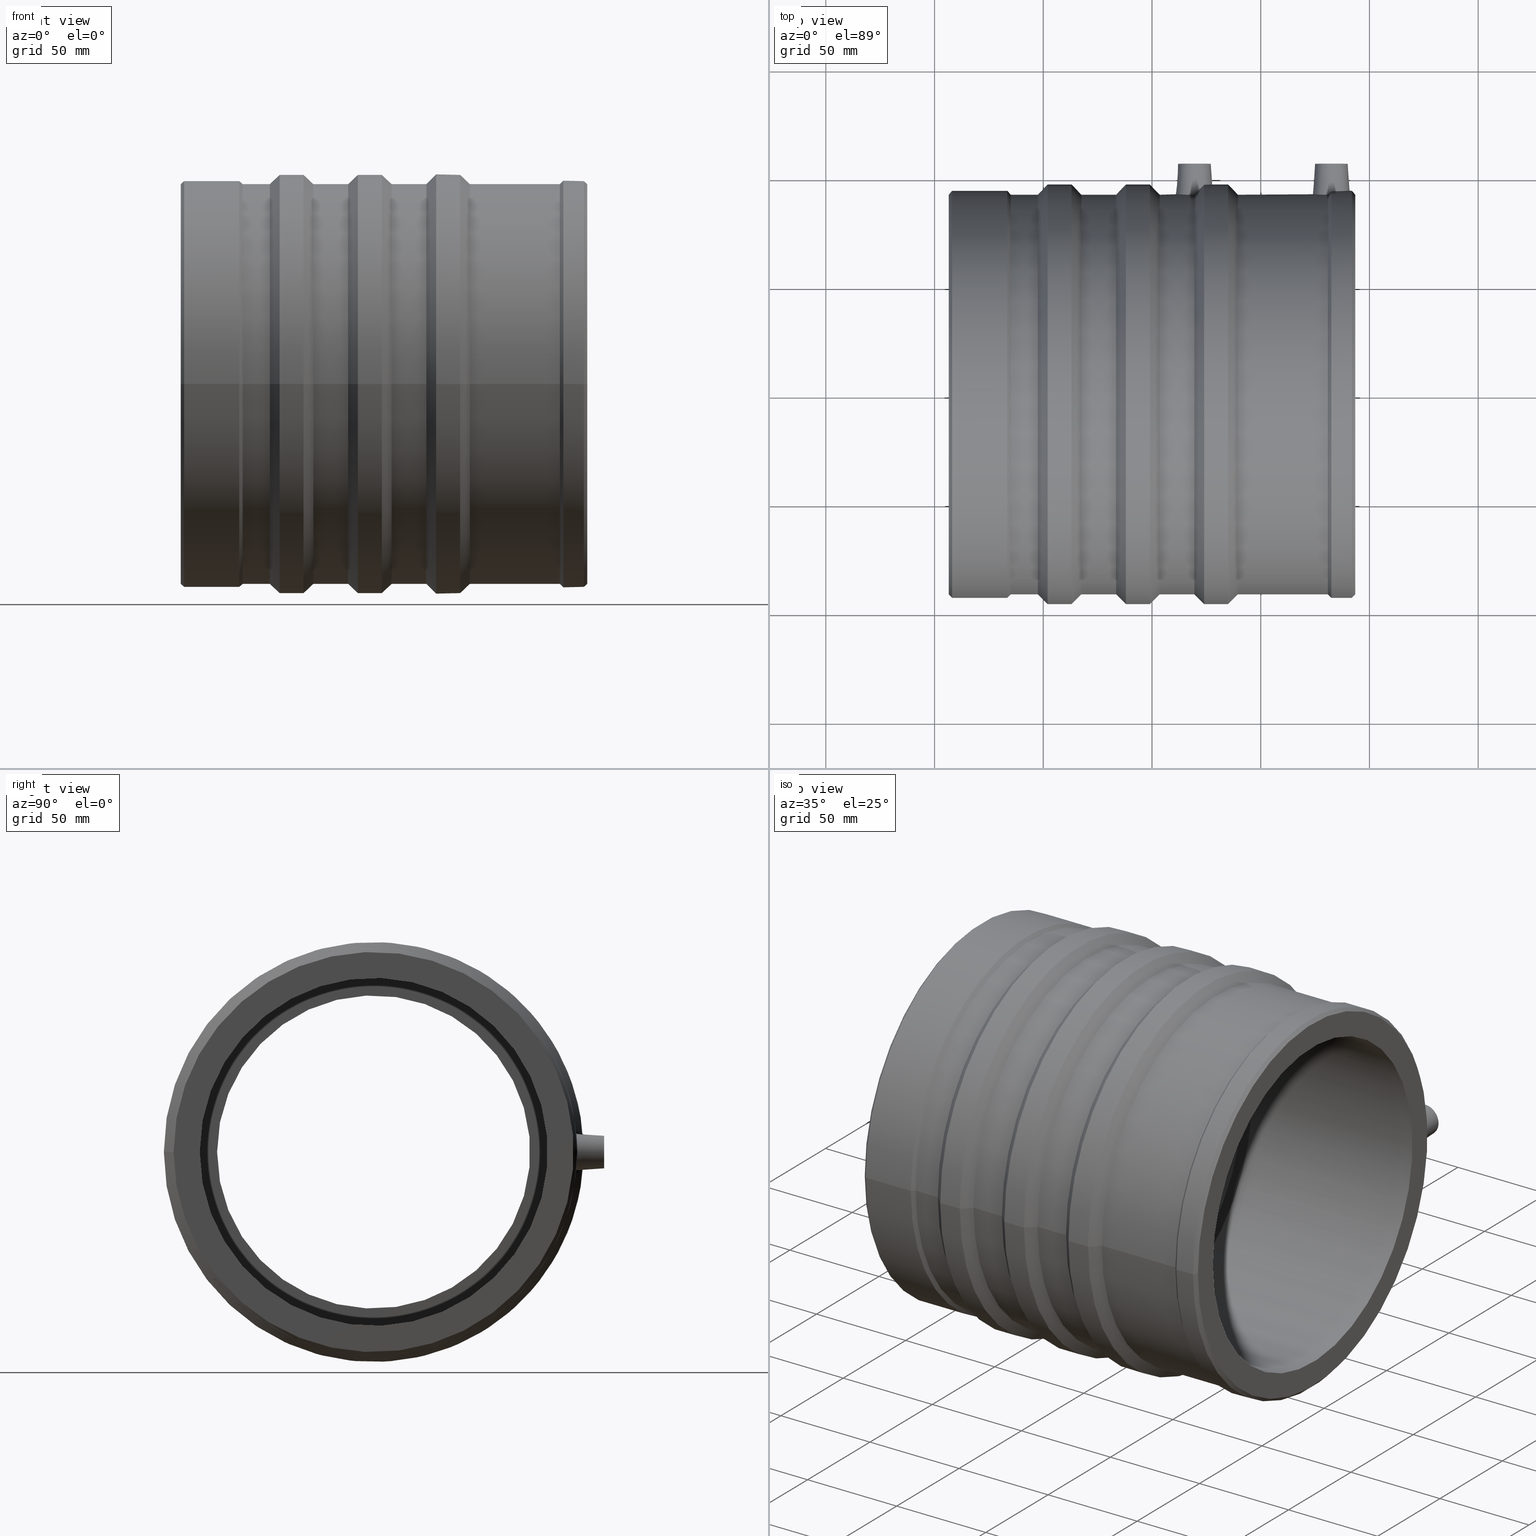
[diagram: canonical four-view strip — front | top / right | iso, engineering-drawing reading convention]
A machine part, canonical four-view strip (front | top / right | iso — engineering-drawing reading convention). The complete STEP part file that produces these views, byte-faithful:
ISO-10303-21;
HEADER;
/* Generated by software containing ST-Developer
 * from STEP Tools, Inc. (www.steptools.com) 
 */

FILE_DESCRIPTION(
/* description */ ('PLASSON PVC TO PE ADAPTOR 160'),
/* implementation_level */ '2;1');

FILE_NAME(
/* name */ 
'C:\\Dropbox\\KIMPROJECTS-Inventor\\99-16-3568-Processing\\ElectroFusi
on Fittings\\4701V4\\4701V4160.ipt.stp',
/* time_stamp */ '2017-11-06T09:09:50+02:00',
/* author */ ('\X2\041A043804400438043B043B\X0\'),
/* organization */ (''),
/* preprocessor_version */ 'ST-DEVELOPER v15.6',
/* originating_system */ 'Autodesk Inventor 2015',
/* authorisation */ '');

FILE_SCHEMA (('AUTOMOTIVE_DESIGN { 1 0 10303 214 3 1 1 }'));
ENDSEC;

DATA;
#10=MECHANICAL_DESIGN_GEOMETRIC_PRESENTATION_REPRESENTATION('',(#13),#948);
#11=SHAPE_REPRESENTATION_RELATIONSHIP('SRR','None',#957,#12);
#12=ADVANCED_BREP_SHAPE_REPRESENTATION($,(#14),#947);
#13=STYLED_ITEM('',(#966),#14);
#14=MANIFOLD_SOLID_BREP('Solid1',#484);
#15=B_SPLINE_CURVE_WITH_KNOTS('',3,(#762,#763,#764,#765,#766,#767,#768),
 .UNSPECIFIED.,.F.,.F.,(4,3,4),(-0.186463948120245,0.,0.0354958039299618),
 .UNSPECIFIED.);
#16=B_SPLINE_CURVE_WITH_KNOTS('',3,(#770,#771,#772,#773,#774,#775,#776,
#777,#778,#779,#780,#781,#782,#783,#784,#785,#786,#787),.UNSPECIFIED.,.F.,
 .F.,(4,2,2,2,2,2,2,2,4),(-2.52674514368012,-2.21078776137079,-1.89483037906145,
-1.57910147545076,-1.26337257184006,-0.947643668229369,-0.631914764618675,
-0.315957382309338,0.),.UNSPECIFIED.);
#17=B_SPLINE_CURVE_WITH_KNOTS('',3,(#789,#790,#791,#792,#793,#794),
 .UNSPECIFIED.,.F.,.F.,(4,2,4),(2.79746124355047,2.83295704748043,3.01942099641415),
 .UNSPECIFIED.);
#18=B_SPLINE_CURVE_WITH_KNOTS('',3,(#795,#796,#797,#798,#799,#800,#801,
#802,#803,#804,#805,#806,#807,#808,#809,#810,#811,#812),.UNSPECIFIED.,.F.,
 .F.,(4,2,2,2,2,2,2,2,4),(0.157292548093549,0.32022700452743,0.64045400905486,
0.96044201823581,1.28043002741676,1.60041803659771,1.92040604577866,2.24063305030609,
2.40356750673997),.UNSPECIFIED.);
#19=B_SPLINE_CURVE_WITH_KNOTS('',3,(#816,#817,#818,#819,#820,#821),
 .UNSPECIFIED.,.F.,.F.,(4,2,4),(5.43166500596152,5.7818485806918,6.06549243439266),
 .UNSPECIFIED.);
#20=B_SPLINE_CURVE_WITH_KNOTS('',3,(#823,#824,#825,#826,#827,#828,#829,
#830,#831,#832,#833,#834,#835,#836),.UNSPECIFIED.,.F.,.F.,(4,2,2,2,2,2,
4),(2.9206396774654,3.08177360296414,3.38982456484115,3.69787552671816,
4.00592648859518,4.31397745047219,4.47511137597093),.UNSPECIFIED.);
#21=B_SPLINE_CURVE_WITH_KNOTS('',3,(#838,#839,#840,#841,#842,#843),
 .UNSPECIFIED.,.F.,.F.,(4,2,4),(3.05545677427075,3.33910062797161,3.68928420270189),
 .UNSPECIFIED.);
#22=B_SPLINE_CURVE_WITH_KNOTS('',3,(#844,#845,#846,#847,#848,#849,#850,
#851,#852,#853,#854,#855,#856,#857,#858,#859,#860,#861),.UNSPECIFIED.,.F.,
 .F.,(4,2,2,2,2,2,2,2,4),(0.,0.32022700452743,0.640454009054861,0.960442018235811,
1.28043002741676,1.60041803659771,1.92040604577866,2.24063305030609,2.56086005483352),
 .UNSPECIFIED.);
#23=CONICAL_SURFACE('',#506,7.5,4.);
#24=CONICAL_SURFACE('',#507,7.5,4.);
#25=CONICAL_SURFACE('',#514,78.,23.4078073493376);
#26=CONICAL_SURFACE('',#523,74.,11.3099324740202);
#27=CONICAL_SURFACE('',#531,92.8025,45.);
#28=CONICAL_SURFACE('',#535,92.8025,45.);
#29=CONICAL_SURFACE('',#536,94.25,44.9999999999999);
#30=CONICAL_SURFACE('',#540,94.25,45.);
#31=CONICAL_SURFACE('',#541,94.25,45.);
#32=CONICAL_SURFACE('',#545,94.25,45.);
#33=CONICAL_SURFACE('',#549,94.25,45.);
#34=CONICAL_SURFACE('',#553,94.25,45.);
#35=CONICAL_SURFACE('',#557,92.8025,44.9999999999998);
#36=CONICAL_SURFACE('',#561,92.8025,45.);
#37=FACE_BOUND('',#134,.T.);
#38=FACE_BOUND('',#136,.T.);
#39=FACE_BOUND('',#138,.T.);
#40=FACE_BOUND('',#140,.T.);
#41=FACE_BOUND('',#142,.T.);
#42=FACE_BOUND('',#144,.T.);
#43=FACE_BOUND('',#146,.T.);
#44=FACE_BOUND('',#148,.T.);
#45=FACE_BOUND('',#150,.T.);
#46=FACE_BOUND('',#152,.T.);
#47=FACE_BOUND('',#154,.T.);
#48=FACE_BOUND('',#156,.T.);
#49=FACE_BOUND('',#158,.T.);
#50=FACE_BOUND('',#160,.T.);
#51=FACE_BOUND('',#162,.T.);
#52=FACE_BOUND('',#164,.T.);
#53=FACE_BOUND('',#166,.T.);
#54=FACE_BOUND('',#168,.T.);
#55=FACE_BOUND('',#170,.T.);
#56=FACE_BOUND('',#172,.T.);
#57=FACE_BOUND('',#174,.T.);
#58=FACE_BOUND('',#176,.T.);
#59=FACE_BOUND('',#179,.T.);
#60=FACE_BOUND('',#181,.T.);
#61=FACE_BOUND('',#184,.T.);
#62=FACE_BOUND('',#186,.T.);
#63=FACE_BOUND('',#188,.T.);
#64=FACE_BOUND('',#190,.T.);
#65=FACE_BOUND('',#192,.T.);
#66=FACE_BOUND('',#194,.T.);
#67=FACE_BOUND('',#196,.T.);
#68=FACE_BOUND('',#198,.T.);
#69=FACE_BOUND('',#200,.T.);
#70=FACE_BOUND('',#202,.T.);
#71=FACE_BOUND('',#204,.T.);
#72=FACE_BOUND('',#206,.T.);
#73=FACE_BOUND('',#208,.T.);
#74=CYLINDRICAL_SURFACE('',#490,2.);
#75=CYLINDRICAL_SURFACE('',#492,5.);
#76=CYLINDRICAL_SURFACE('',#496,2.);
#77=CYLINDRICAL_SURFACE('',#498,5.);
#78=CYLINDRICAL_SURFACE('',#508,92.);
#79=CYLINDRICAL_SURFACE('',#511,92.);
#80=CYLINDRICAL_SURFACE('',#519,80.);
#81=CYLINDRICAL_SURFACE('',#527,80.);
#82=CYLINDRICAL_SURFACE('',#533,93.605);
#83=CYLINDRICAL_SURFACE('',#538,96.5);
#84=CYLINDRICAL_SURFACE('',#543,96.5);
#85=CYLINDRICAL_SURFACE('',#547,92.);
#86=CYLINDRICAL_SURFACE('',#551,96.5);
#87=CYLINDRICAL_SURFACE('',#555,92.);
#88=CYLINDRICAL_SURFACE('',#559,93.605);
#89=CYLINDRICAL_SURFACE('',#565,80.);
#90=FACE_OUTER_BOUND('',#131,.T.);
#91=FACE_OUTER_BOUND('',#132,.T.);
#92=FACE_OUTER_BOUND('',#133,.T.);
#93=FACE_OUTER_BOUND('',#135,.T.);
#94=FACE_OUTER_BOUND('',#137,.T.);
#95=FACE_OUTER_BOUND('',#139,.T.);
#96=FACE_OUTER_BOUND('',#141,.T.);
#97=FACE_OUTER_BOUND('',#143,.T.);
#98=FACE_OUTER_BOUND('',#145,.T.);
#99=FACE_OUTER_BOUND('',#147,.T.);
#100=FACE_OUTER_BOUND('',#149,.T.);
#101=FACE_OUTER_BOUND('',#151,.T.);
#102=FACE_OUTER_BOUND('',#153,.T.);
#103=FACE_OUTER_BOUND('',#155,.T.);
#104=FACE_OUTER_BOUND('',#157,.T.);
#105=FACE_OUTER_BOUND('',#159,.T.);
#106=FACE_OUTER_BOUND('',#161,.T.);
#107=FACE_OUTER_BOUND('',#163,.T.);
#108=FACE_OUTER_BOUND('',#165,.T.);
#109=FACE_OUTER_BOUND('',#167,.T.);
#110=FACE_OUTER_BOUND('',#169,.T.);
#111=FACE_OUTER_BOUND('',#171,.T.);
#112=FACE_OUTER_BOUND('',#173,.T.);
#113=FACE_OUTER_BOUND('',#175,.T.);
#114=FACE_OUTER_BOUND('',#177,.T.);
#115=FACE_OUTER_BOUND('',#178,.T.);
#116=FACE_OUTER_BOUND('',#180,.T.);
#117=FACE_OUTER_BOUND('',#182,.T.);
#118=FACE_OUTER_BOUND('',#183,.T.);
#119=FACE_OUTER_BOUND('',#185,.T.);
#120=FACE_OUTER_BOUND('',#187,.T.);
#121=FACE_OUTER_BOUND('',#189,.T.);
#122=FACE_OUTER_BOUND('',#191,.T.);
#123=FACE_OUTER_BOUND('',#193,.T.);
#124=FACE_OUTER_BOUND('',#195,.T.);
#125=FACE_OUTER_BOUND('',#197,.T.);
#126=FACE_OUTER_BOUND('',#199,.T.);
#127=FACE_OUTER_BOUND('',#201,.T.);
#128=FACE_OUTER_BOUND('',#203,.T.);
#129=FACE_OUTER_BOUND('',#205,.T.);
#130=FACE_OUTER_BOUND('',#207,.T.);
#131=EDGE_LOOP('',(#338));
#132=EDGE_LOOP('',(#339));
#133=EDGE_LOOP('',(#340));
#134=EDGE_LOOP('',(#341));
#135=EDGE_LOOP('',(#342));
#136=EDGE_LOOP('',(#343));
#137=EDGE_LOOP('',(#344));
#138=EDGE_LOOP('',(#345));
#139=EDGE_LOOP('',(#346));
#140=EDGE_LOOP('',(#347));
#141=EDGE_LOOP('',(#348));
#142=EDGE_LOOP('',(#349));
#143=EDGE_LOOP('',(#350));
#144=EDGE_LOOP('',(#351));
#145=EDGE_LOOP('',(#352));
#146=EDGE_LOOP('',(#353));
#147=EDGE_LOOP('',(#354));
#148=EDGE_LOOP('',(#355));
#149=EDGE_LOOP('',(#356,#357,#358,#359));
#150=EDGE_LOOP('',(#360));
#151=EDGE_LOOP('',(#361,#362,#363,#364));
#152=EDGE_LOOP('',(#365));
#153=EDGE_LOOP('',(#366,#367));
#154=EDGE_LOOP('',(#368));
#155=EDGE_LOOP('',(#369,#370));
#156=EDGE_LOOP('',(#371));
#157=EDGE_LOOP('',(#372));
#158=EDGE_LOOP('',(#373));
#159=EDGE_LOOP('',(#374));
#160=EDGE_LOOP('',(#375));
#161=EDGE_LOOP('',(#376));
#162=EDGE_LOOP('',(#377));
#163=EDGE_LOOP('',(#378));
#164=EDGE_LOOP('',(#379));
#165=EDGE_LOOP('',(#380));
#166=EDGE_LOOP('',(#381));
#167=EDGE_LOOP('',(#382));
#168=EDGE_LOOP('',(#383));
#169=EDGE_LOOP('',(#384));
#170=EDGE_LOOP('',(#385));
#171=EDGE_LOOP('',(#386));
#172=EDGE_LOOP('',(#387));
#173=EDGE_LOOP('',(#388));
#174=EDGE_LOOP('',(#389));
#175=EDGE_LOOP('',(#390,#391));
#176=EDGE_LOOP('',(#392));
#177=EDGE_LOOP('',(#393,#394,#395,#396));
#178=EDGE_LOOP('',(#397));
#179=EDGE_LOOP('',(#398));
#180=EDGE_LOOP('',(#399,#400));
#181=EDGE_LOOP('',(#401));
#182=EDGE_LOOP('',(#402,#403,#404,#405));
#183=EDGE_LOOP('',(#406));
#184=EDGE_LOOP('',(#407));
#185=EDGE_LOOP('',(#408));
#186=EDGE_LOOP('',(#409));
#187=EDGE_LOOP('',(#410));
#188=EDGE_LOOP('',(#411));
#189=EDGE_LOOP('',(#412));
#190=EDGE_LOOP('',(#413));
#191=EDGE_LOOP('',(#414));
#192=EDGE_LOOP('',(#415));
#193=EDGE_LOOP('',(#416));
#194=EDGE_LOOP('',(#417));
#195=EDGE_LOOP('',(#418));
#196=EDGE_LOOP('',(#419));
#197=EDGE_LOOP('',(#420));
#198=EDGE_LOOP('',(#421));
#199=EDGE_LOOP('',(#422));
#200=EDGE_LOOP('',(#423));
#201=EDGE_LOOP('',(#424));
#202=EDGE_LOOP('',(#425));
#203=EDGE_LOOP('',(#426));
#204=EDGE_LOOP('',(#427));
#205=EDGE_LOOP('',(#428));
#206=EDGE_LOOP('',(#429));
#207=EDGE_LOOP('',(#430));
#208=EDGE_LOOP('',(#431));
#209=CIRCLE('',#487,2.);
#210=CIRCLE('',#489,2.);
#211=CIRCLE('',#491,2.);
#212=CIRCLE('',#493,5.);
#213=CIRCLE('',#494,5.);
#214=CIRCLE('',#497,2.);
#215=CIRCLE('',#499,5.);
#216=CIRCLE('',#500,5.);
#217=CIRCLE('',#503,7.5);
#218=CIRCLE('',#505,7.5);
#219=CIRCLE('',#509,92.);
#220=CIRCLE('',#510,92.);
#221=CIRCLE('',#512,92.);
#222=CIRCLE('',#513,92.);
#223=CIRCLE('',#515,76.);
#224=CIRCLE('',#516,80.);
#225=CIRCLE('',#518,80.);
#226=CIRCLE('',#520,80.);
#227=CIRCLE('',#522,76.);
#228=CIRCLE('',#524,72.);
#229=CIRCLE('',#526,80.);
#230=CIRCLE('',#528,80.);
#231=CIRCLE('',#530,92.);
#232=CIRCLE('',#532,93.605);
#233=CIRCLE('',#534,93.605);
#234=CIRCLE('',#537,96.5);
#235=CIRCLE('',#539,96.5);
#236=CIRCLE('',#542,96.5);
#237=CIRCLE('',#544,96.5);
#238=CIRCLE('',#546,92.);
#239=CIRCLE('',#548,92.);
#240=CIRCLE('',#550,96.5);
#241=CIRCLE('',#552,96.5);
#242=CIRCLE('',#554,92.);
#243=CIRCLE('',#556,92.);
#244=CIRCLE('',#558,93.605);
#245=CIRCLE('',#560,93.605);
#246=CIRCLE('',#562,92.);
#247=CIRCLE('',#564,80.);
#248=VERTEX_POINT('',#730);
#249=VERTEX_POINT('',#733);
#250=VERTEX_POINT('',#736);
#251=VERTEX_POINT('',#739);
#252=VERTEX_POINT('',#741);
#253=VERTEX_POINT('',#745);
#254=VERTEX_POINT('',#748);
#255=VERTEX_POINT('',#750);
#256=VERTEX_POINT('',#754);
#257=VERTEX_POINT('',#757);
#258=VERTEX_POINT('',#760);
#259=VERTEX_POINT('',#761);
#260=VERTEX_POINT('',#769);
#261=VERTEX_POINT('',#788);
#262=VERTEX_POINT('',#814);
#263=VERTEX_POINT('',#815);
#264=VERTEX_POINT('',#822);
#265=VERTEX_POINT('',#837);
#266=VERTEX_POINT('',#864);
#267=VERTEX_POINT('',#868);
#268=VERTEX_POINT('',#871);
#269=VERTEX_POINT('',#873);
#270=VERTEX_POINT('',#876);
#271=VERTEX_POINT('',#879);
#272=VERTEX_POINT('',#882);
#273=VERTEX_POINT('',#885);
#274=VERTEX_POINT('',#888);
#275=VERTEX_POINT('',#891);
#276=VERTEX_POINT('',#894);
#277=VERTEX_POINT('',#897);
#278=VERTEX_POINT('',#903);
#279=VERTEX_POINT('',#909);
#280=VERTEX_POINT('',#912);
#281=VERTEX_POINT('',#915);
#282=VERTEX_POINT('',#918);
#283=VERTEX_POINT('',#921);
#284=VERTEX_POINT('',#924);
#285=VERTEX_POINT('',#927);
#286=VERTEX_POINT('',#930);
#287=VERTEX_POINT('',#933);
#288=VERTEX_POINT('',#936);
#289=VERTEX_POINT('',#939);
#290=VERTEX_POINT('',#942);
#291=EDGE_CURVE('',#248,#248,#209,.T.);
#292=EDGE_CURVE('',#249,#249,#210,.T.);
#293=EDGE_CURVE('',#250,#250,#211,.T.);
#294=EDGE_CURVE('',#251,#251,#212,.T.);
#295=EDGE_CURVE('',#252,#252,#213,.T.);
#296=EDGE_CURVE('',#253,#253,#214,.T.);
#297=EDGE_CURVE('',#254,#254,#215,.T.);
#298=EDGE_CURVE('',#255,#255,#216,.T.);
#299=EDGE_CURVE('',#256,#256,#217,.T.);
#300=EDGE_CURVE('',#257,#257,#218,.T.);
#301=EDGE_CURVE('',#258,#259,#15,.T.);
#302=EDGE_CURVE('',#260,#258,#16,.T.);
#303=EDGE_CURVE('',#261,#260,#17,.T.);
#304=EDGE_CURVE('',#259,#261,#18,.T.);
#305=EDGE_CURVE('',#262,#263,#19,.T.);
#306=EDGE_CURVE('',#264,#262,#20,.T.);
#307=EDGE_CURVE('',#265,#264,#21,.T.);
#308=EDGE_CURVE('',#263,#265,#22,.T.);
#309=EDGE_CURVE('',#261,#259,#219,.T.);
#310=EDGE_CURVE('',#266,#266,#220,.T.);
#311=EDGE_CURVE('',#265,#263,#221,.T.);
#312=EDGE_CURVE('',#267,#267,#222,.T.);
#313=EDGE_CURVE('',#268,#268,#223,.T.);
#314=EDGE_CURVE('',#269,#269,#224,.T.);
#315=EDGE_CURVE('',#270,#270,#225,.T.);
#316=EDGE_CURVE('',#271,#271,#226,.T.);
#317=EDGE_CURVE('',#272,#272,#227,.T.);
#318=EDGE_CURVE('',#273,#273,#228,.T.);
#319=EDGE_CURVE('',#274,#274,#229,.T.);
#320=EDGE_CURVE('',#275,#275,#230,.T.);
#321=EDGE_CURVE('',#276,#276,#231,.T.);
#322=EDGE_CURVE('',#277,#277,#232,.T.);
#323=EDGE_CURVE('',#260,#258,#233,.T.);
#324=EDGE_CURVE('',#278,#278,#234,.T.);
#325=EDGE_CURVE('',#264,#262,#235,.T.);
#326=EDGE_CURVE('',#279,#279,#236,.T.);
#327=EDGE_CURVE('',#280,#280,#237,.T.);
#328=EDGE_CURVE('',#281,#281,#238,.T.);
#329=EDGE_CURVE('',#282,#282,#239,.T.);
#330=EDGE_CURVE('',#283,#283,#240,.T.);
#331=EDGE_CURVE('',#284,#284,#241,.T.);
#332=EDGE_CURVE('',#285,#285,#242,.T.);
#333=EDGE_CURVE('',#286,#286,#243,.T.);
#334=EDGE_CURVE('',#287,#287,#244,.T.);
#335=EDGE_CURVE('',#288,#288,#245,.T.);
#336=EDGE_CURVE('',#289,#289,#246,.T.);
#337=EDGE_CURVE('',#290,#290,#247,.T.);
#338=ORIENTED_EDGE('',*,*,#291,.F.);
#339=ORIENTED_EDGE('',*,*,#292,.F.);
#340=ORIENTED_EDGE('',*,*,#292,.T.);
#341=ORIENTED_EDGE('',*,*,#293,.T.);
#342=ORIENTED_EDGE('',*,*,#294,.T.);
#343=ORIENTED_EDGE('',*,*,#295,.F.);
#344=ORIENTED_EDGE('',*,*,#294,.F.);
#345=ORIENTED_EDGE('',*,*,#293,.F.);
#346=ORIENTED_EDGE('',*,*,#291,.T.);
#347=ORIENTED_EDGE('',*,*,#296,.T.);
#348=ORIENTED_EDGE('',*,*,#297,.T.);
#349=ORIENTED_EDGE('',*,*,#298,.F.);
#350=ORIENTED_EDGE('',*,*,#297,.F.);
#351=ORIENTED_EDGE('',*,*,#296,.F.);
#352=ORIENTED_EDGE('',*,*,#299,.F.);
#353=ORIENTED_EDGE('',*,*,#295,.T.);
#354=ORIENTED_EDGE('',*,*,#300,.F.);
#355=ORIENTED_EDGE('',*,*,#298,.T.);
#356=ORIENTED_EDGE('',*,*,#301,.F.);
#357=ORIENTED_EDGE('',*,*,#302,.F.);
#358=ORIENTED_EDGE('',*,*,#303,.F.);
#359=ORIENTED_EDGE('',*,*,#304,.F.);
#360=ORIENTED_EDGE('',*,*,#299,.T.);
#361=ORIENTED_EDGE('',*,*,#305,.F.);
#362=ORIENTED_EDGE('',*,*,#306,.F.);
#363=ORIENTED_EDGE('',*,*,#307,.F.);
#364=ORIENTED_EDGE('',*,*,#308,.F.);
#365=ORIENTED_EDGE('',*,*,#300,.T.);
#366=ORIENTED_EDGE('',*,*,#304,.T.);
#367=ORIENTED_EDGE('',*,*,#309,.T.);
#368=ORIENTED_EDGE('',*,*,#310,.F.);
#369=ORIENTED_EDGE('',*,*,#308,.T.);
#370=ORIENTED_EDGE('',*,*,#311,.T.);
#371=ORIENTED_EDGE('',*,*,#312,.F.);
#372=ORIENTED_EDGE('',*,*,#313,.F.);
#373=ORIENTED_EDGE('',*,*,#314,.T.);
#374=ORIENTED_EDGE('',*,*,#315,.F.);
#375=ORIENTED_EDGE('',*,*,#313,.T.);
#376=ORIENTED_EDGE('',*,*,#316,.F.);
#377=ORIENTED_EDGE('',*,*,#315,.T.);
#378=ORIENTED_EDGE('',*,*,#316,.T.);
#379=ORIENTED_EDGE('',*,*,#317,.F.);
#380=ORIENTED_EDGE('',*,*,#318,.F.);
#381=ORIENTED_EDGE('',*,*,#317,.T.);
#382=ORIENTED_EDGE('',*,*,#319,.F.);
#383=ORIENTED_EDGE('',*,*,#318,.T.);
#384=ORIENTED_EDGE('',*,*,#320,.F.);
#385=ORIENTED_EDGE('',*,*,#319,.T.);
#386=ORIENTED_EDGE('',*,*,#321,.F.);
#387=ORIENTED_EDGE('',*,*,#320,.T.);
#388=ORIENTED_EDGE('',*,*,#322,.F.);
#389=ORIENTED_EDGE('',*,*,#321,.T.);
#390=ORIENTED_EDGE('',*,*,#302,.T.);
#391=ORIENTED_EDGE('',*,*,#323,.F.);
#392=ORIENTED_EDGE('',*,*,#322,.T.);
#393=ORIENTED_EDGE('',*,*,#301,.T.);
#394=ORIENTED_EDGE('',*,*,#309,.F.);
#395=ORIENTED_EDGE('',*,*,#303,.T.);
#396=ORIENTED_EDGE('',*,*,#323,.T.);
#397=ORIENTED_EDGE('',*,*,#324,.F.);
#398=ORIENTED_EDGE('',*,*,#310,.T.);
#399=ORIENTED_EDGE('',*,*,#306,.T.);
#400=ORIENTED_EDGE('',*,*,#325,.F.);
#401=ORIENTED_EDGE('',*,*,#324,.T.);
#402=ORIENTED_EDGE('',*,*,#305,.T.);
#403=ORIENTED_EDGE('',*,*,#311,.F.);
#404=ORIENTED_EDGE('',*,*,#307,.T.);
#405=ORIENTED_EDGE('',*,*,#325,.T.);
#406=ORIENTED_EDGE('',*,*,#326,.F.);
#407=ORIENTED_EDGE('',*,*,#312,.T.);
#408=ORIENTED_EDGE('',*,*,#327,.F.);
#409=ORIENTED_EDGE('',*,*,#326,.T.);
#410=ORIENTED_EDGE('',*,*,#328,.F.);
#411=ORIENTED_EDGE('',*,*,#327,.T.);
#412=ORIENTED_EDGE('',*,*,#329,.F.);
#413=ORIENTED_EDGE('',*,*,#328,.T.);
#414=ORIENTED_EDGE('',*,*,#330,.F.);
#415=ORIENTED_EDGE('',*,*,#329,.T.);
#416=ORIENTED_EDGE('',*,*,#331,.F.);
#417=ORIENTED_EDGE('',*,*,#330,.T.);
#418=ORIENTED_EDGE('',*,*,#332,.F.);
#419=ORIENTED_EDGE('',*,*,#331,.T.);
#420=ORIENTED_EDGE('',*,*,#333,.F.);
#421=ORIENTED_EDGE('',*,*,#332,.T.);
#422=ORIENTED_EDGE('',*,*,#334,.F.);
#423=ORIENTED_EDGE('',*,*,#333,.T.);
#424=ORIENTED_EDGE('',*,*,#335,.F.);
#425=ORIENTED_EDGE('',*,*,#334,.T.);
#426=ORIENTED_EDGE('',*,*,#336,.F.);
#427=ORIENTED_EDGE('',*,*,#335,.T.);
#428=ORIENTED_EDGE('',*,*,#336,.T.);
#429=ORIENTED_EDGE('',*,*,#337,.F.);
#430=ORIENTED_EDGE('',*,*,#314,.F.);
#431=ORIENTED_EDGE('',*,*,#337,.T.);
#432=PLANE('',#486);
#433=PLANE('',#488);
#434=PLANE('',#495);
#435=PLANE('',#501);
#436=PLANE('',#502);
#437=PLANE('',#504);
#438=PLANE('',#517);
#439=PLANE('',#521);
#440=PLANE('',#525);
#441=PLANE('',#529);
#442=PLANE('',#563);
#443=ADVANCED_FACE('',(#90),#432,.T.);
#444=ADVANCED_FACE('',(#91),#433,.T.);
#445=ADVANCED_FACE('',(#92,#37),#74,.T.);
#446=ADVANCED_FACE('',(#93,#38),#75,.F.);
#447=ADVANCED_FACE('',(#94,#39),#434,.T.);
#448=ADVANCED_FACE('',(#95,#40),#76,.T.);
#449=ADVANCED_FACE('',(#96,#41),#77,.F.);
#450=ADVANCED_FACE('',(#97,#42),#435,.T.);
#451=ADVANCED_FACE('',(#98,#43),#436,.T.);
#452=ADVANCED_FACE('',(#99,#44),#437,.T.);
#453=ADVANCED_FACE('',(#100,#45),#23,.T.);
#454=ADVANCED_FACE('',(#101,#46),#24,.T.);
#455=ADVANCED_FACE('',(#102,#47),#78,.T.);
#456=ADVANCED_FACE('',(#103,#48),#79,.T.);
#457=ADVANCED_FACE('',(#104,#49),#25,.F.);
#458=ADVANCED_FACE('',(#105,#50),#438,.T.);
#459=ADVANCED_FACE('',(#106,#51),#80,.F.);
#460=ADVANCED_FACE('',(#107,#52),#439,.T.);
#461=ADVANCED_FACE('',(#108,#53),#26,.F.);
#462=ADVANCED_FACE('',(#109,#54),#440,.T.);
#463=ADVANCED_FACE('',(#110,#55),#81,.F.);
#464=ADVANCED_FACE('',(#111,#56),#441,.T.);
#465=ADVANCED_FACE('',(#112,#57),#27,.T.);
#466=ADVANCED_FACE('',(#113,#58),#82,.T.);
#467=ADVANCED_FACE('',(#114),#28,.T.);
#468=ADVANCED_FACE('',(#115,#59),#29,.T.);
#469=ADVANCED_FACE('',(#116,#60),#83,.T.);
#470=ADVANCED_FACE('',(#117),#30,.T.);
#471=ADVANCED_FACE('',(#118,#61),#31,.T.);
#472=ADVANCED_FACE('',(#119,#62),#84,.T.);
#473=ADVANCED_FACE('',(#120,#63),#32,.T.);
#474=ADVANCED_FACE('',(#121,#64),#85,.T.);
#475=ADVANCED_FACE('',(#122,#65),#33,.T.);
#476=ADVANCED_FACE('',(#123,#66),#86,.T.);
#477=ADVANCED_FACE('',(#124,#67),#34,.T.);
#478=ADVANCED_FACE('',(#125,#68),#87,.T.);
#479=ADVANCED_FACE('',(#126,#69),#35,.T.);
#480=ADVANCED_FACE('',(#127,#70),#88,.T.);
#481=ADVANCED_FACE('',(#128,#71),#36,.T.);
#482=ADVANCED_FACE('',(#129,#72),#442,.T.);
#483=ADVANCED_FACE('',(#130,#73),#89,.F.);
#484=CLOSED_SHELL('',(#443,#444,#445,#446,#447,#448,#449,#450,#451,#452,
#453,#454,#455,#456,#457,#458,#459,#460,#461,#462,#463,#464,#465,#466,#467,
#468,#469,#470,#471,#472,#473,#474,#475,#476,#477,#478,#479,#480,#481,#482,
#483));
#485=AXIS2_PLACEMENT_3D('placement',#728,#566,#567);
#486=AXIS2_PLACEMENT_3D('',#729,#568,#569);
#487=AXIS2_PLACEMENT_3D('',#731,#570,#571);
#488=AXIS2_PLACEMENT_3D('',#732,#572,#573);
#489=AXIS2_PLACEMENT_3D('',#734,#574,#575);
#490=AXIS2_PLACEMENT_3D('',#735,#576,#577);
#491=AXIS2_PLACEMENT_3D('',#737,#578,#579);
#492=AXIS2_PLACEMENT_3D('',#738,#580,#581);
#493=AXIS2_PLACEMENT_3D('',#740,#582,#583);
#494=AXIS2_PLACEMENT_3D('',#742,#584,#585);
#495=AXIS2_PLACEMENT_3D('',#743,#586,#587);
#496=AXIS2_PLACEMENT_3D('',#744,#588,#589);
#497=AXIS2_PLACEMENT_3D('',#746,#590,#591);
#498=AXIS2_PLACEMENT_3D('',#747,#592,#593);
#499=AXIS2_PLACEMENT_3D('',#749,#594,#595);
#500=AXIS2_PLACEMENT_3D('',#751,#596,#597);
#501=AXIS2_PLACEMENT_3D('',#752,#598,#599);
#502=AXIS2_PLACEMENT_3D('',#753,#600,#601);
#503=AXIS2_PLACEMENT_3D('',#755,#602,#603);
#504=AXIS2_PLACEMENT_3D('',#756,#604,#605);
#505=AXIS2_PLACEMENT_3D('',#758,#606,#607);
#506=AXIS2_PLACEMENT_3D('',#759,#608,#609);
#507=AXIS2_PLACEMENT_3D('',#813,#610,#611);
#508=AXIS2_PLACEMENT_3D('',#862,#612,#613);
#509=AXIS2_PLACEMENT_3D('',#863,#614,#615);
#510=AXIS2_PLACEMENT_3D('',#865,#616,#617);
#511=AXIS2_PLACEMENT_3D('',#866,#618,#619);
#512=AXIS2_PLACEMENT_3D('',#867,#620,#621);
#513=AXIS2_PLACEMENT_3D('',#869,#622,#623);
#514=AXIS2_PLACEMENT_3D('',#870,#624,#625);
#515=AXIS2_PLACEMENT_3D('',#872,#626,#627);
#516=AXIS2_PLACEMENT_3D('',#874,#628,#629);
#517=AXIS2_PLACEMENT_3D('',#875,#630,#631);
#518=AXIS2_PLACEMENT_3D('',#877,#632,#633);
#519=AXIS2_PLACEMENT_3D('',#878,#634,#635);
#520=AXIS2_PLACEMENT_3D('',#880,#636,#637);
#521=AXIS2_PLACEMENT_3D('',#881,#638,#639);
#522=AXIS2_PLACEMENT_3D('',#883,#640,#641);
#523=AXIS2_PLACEMENT_3D('',#884,#642,#643);
#524=AXIS2_PLACEMENT_3D('',#886,#644,#645);
#525=AXIS2_PLACEMENT_3D('',#887,#646,#647);
#526=AXIS2_PLACEMENT_3D('',#889,#648,#649);
#527=AXIS2_PLACEMENT_3D('',#890,#650,#651);
#528=AXIS2_PLACEMENT_3D('',#892,#652,#653);
#529=AXIS2_PLACEMENT_3D('',#893,#654,#655);
#530=AXIS2_PLACEMENT_3D('',#895,#656,#657);
#531=AXIS2_PLACEMENT_3D('',#896,#658,#659);
#532=AXIS2_PLACEMENT_3D('',#898,#660,#661);
#533=AXIS2_PLACEMENT_3D('',#899,#662,#663);
#534=AXIS2_PLACEMENT_3D('',#900,#664,#665);
#535=AXIS2_PLACEMENT_3D('',#901,#666,#667);
#536=AXIS2_PLACEMENT_3D('',#902,#668,#669);
#537=AXIS2_PLACEMENT_3D('',#904,#670,#671);
#538=AXIS2_PLACEMENT_3D('',#905,#672,#673);
#539=AXIS2_PLACEMENT_3D('',#906,#674,#675);
#540=AXIS2_PLACEMENT_3D('',#907,#676,#677);
#541=AXIS2_PLACEMENT_3D('',#908,#678,#679);
#542=AXIS2_PLACEMENT_3D('',#910,#680,#681);
#543=AXIS2_PLACEMENT_3D('',#911,#682,#683);
#544=AXIS2_PLACEMENT_3D('',#913,#684,#685);
#545=AXIS2_PLACEMENT_3D('',#914,#686,#687);
#546=AXIS2_PLACEMENT_3D('',#916,#688,#689);
#547=AXIS2_PLACEMENT_3D('',#917,#690,#691);
#548=AXIS2_PLACEMENT_3D('',#919,#692,#693);
#549=AXIS2_PLACEMENT_3D('',#920,#694,#695);
#550=AXIS2_PLACEMENT_3D('',#922,#696,#697);
#551=AXIS2_PLACEMENT_3D('',#923,#698,#699);
#552=AXIS2_PLACEMENT_3D('',#925,#700,#701);
#553=AXIS2_PLACEMENT_3D('',#926,#702,#703);
#554=AXIS2_PLACEMENT_3D('',#928,#704,#705);
#555=AXIS2_PLACEMENT_3D('',#929,#706,#707);
#556=AXIS2_PLACEMENT_3D('',#931,#708,#709);
#557=AXIS2_PLACEMENT_3D('',#932,#710,#711);
#558=AXIS2_PLACEMENT_3D('',#934,#712,#713);
#559=AXIS2_PLACEMENT_3D('',#935,#714,#715);
#560=AXIS2_PLACEMENT_3D('',#937,#716,#717);
#561=AXIS2_PLACEMENT_3D('',#938,#718,#719);
#562=AXIS2_PLACEMENT_3D('',#940,#720,#721);
#563=AXIS2_PLACEMENT_3D('',#941,#722,#723);
#564=AXIS2_PLACEMENT_3D('',#943,#724,#725);
#565=AXIS2_PLACEMENT_3D('',#944,#726,#727);
#566=DIRECTION('axis',(0.,0.,1.));
#567=DIRECTION('refdir',(1.,0.,0.));
#568=DIRECTION('center_axis',(0.,1.,0.));
#569=DIRECTION('ref_axis',(0.,0.,1.));
#570=DIRECTION('center_axis',(0.,-1.,0.));
#571=DIRECTION('ref_axis',(-1.,0.,0.));
#572=DIRECTION('center_axis',(0.,1.,0.));
#573=DIRECTION('ref_axis',(0.,0.,1.));
#574=DIRECTION('center_axis',(0.,-1.,0.));
#575=DIRECTION('ref_axis',(-1.,0.,0.));
#576=DIRECTION('center_axis',(0.,-1.,0.));
#577=DIRECTION('ref_axis',(-1.,0.,0.));
#578=DIRECTION('center_axis',(0.,1.,0.));
#579=DIRECTION('ref_axis',(-1.,0.,0.));
#580=DIRECTION('center_axis',(0.,-1.,0.));
#581=DIRECTION('ref_axis',(-1.,0.,0.));
#582=DIRECTION('center_axis',(0.,-1.,0.));
#583=DIRECTION('ref_axis',(-1.,0.,0.));
#584=DIRECTION('center_axis',(0.,-1.,0.));
#585=DIRECTION('ref_axis',(-1.,0.,0.));
#586=DIRECTION('center_axis',(0.,1.,0.));
#587=DIRECTION('ref_axis',(0.,0.,1.));
#588=DIRECTION('center_axis',(0.,-1.,0.));
#589=DIRECTION('ref_axis',(-1.,0.,0.));
#590=DIRECTION('center_axis',(0.,1.,0.));
#591=DIRECTION('ref_axis',(-1.,0.,0.));
#592=DIRECTION('center_axis',(0.,-1.,0.));
#593=DIRECTION('ref_axis',(-1.,0.,0.));
#594=DIRECTION('center_axis',(0.,-1.,0.));
#595=DIRECTION('ref_axis',(-1.,0.,0.));
#596=DIRECTION('center_axis',(0.,-1.,0.));
#597=DIRECTION('ref_axis',(-1.,0.,0.));
#598=DIRECTION('center_axis',(0.,1.,0.));
#599=DIRECTION('ref_axis',(0.,0.,1.));
#600=DIRECTION('center_axis',(0.,1.,0.));
#601=DIRECTION('ref_axis',(0.,0.,1.));
#602=DIRECTION('center_axis',(0.,-1.,0.));
#603=DIRECTION('ref_axis',(1.,0.,0.));
#604=DIRECTION('center_axis',(0.,1.,0.));
#605=DIRECTION('ref_axis',(0.,0.,1.));
#606=DIRECTION('center_axis',(0.,-1.,0.));
#607=DIRECTION('ref_axis',(1.,0.,0.));
#608=DIRECTION('center_axis',(0.,-1.,0.));
#609=DIRECTION('ref_axis',(1.,0.,0.));
#610=DIRECTION('center_axis',(0.,-1.,0.));
#611=DIRECTION('ref_axis',(1.,0.,0.));
#612=DIRECTION('center_axis',(-1.,-1.83697019872103E-16,0.));
#613=DIRECTION('ref_axis',(1.80411241501588E-16,-1.,0.));
#614=DIRECTION('center_axis',(-1.,-1.83697019872103E-16,0.));
#615=DIRECTION('ref_axis',(0.,0.,1.));
#616=DIRECTION('center_axis',(-1.,-1.83697019872103E-16,0.));
#617=DIRECTION('ref_axis',(0.,0.,1.));
#618=DIRECTION('center_axis',(-1.,-1.83697019872103E-16,0.));
#619=DIRECTION('ref_axis',(1.80411241501588E-16,-1.,0.));
#620=DIRECTION('center_axis',(-1.,-1.83697019872103E-16,0.));
#621=DIRECTION('ref_axis',(0.,0.,1.));
#622=DIRECTION('center_axis',(-1.,-1.83697019872103E-16,0.));
#623=DIRECTION('ref_axis',(0.,0.,1.));
#624=DIRECTION('center_axis',(-1.,-1.83697019872103E-16,0.));
#625=DIRECTION('ref_axis',(1.80411241501588E-16,-1.,0.));
#626=DIRECTION('center_axis',(-1.,-1.83697019872103E-16,0.));
#627=DIRECTION('ref_axis',(0.,0.,1.));
#628=DIRECTION('center_axis',(-1.,-1.83697019872103E-16,0.));
#629=DIRECTION('ref_axis',(0.,0.,1.));
#630=DIRECTION('center_axis',(1.,1.83697019872103E-16,0.));
#631=DIRECTION('ref_axis',(0.,0.,-1.));
#632=DIRECTION('center_axis',(-1.,-1.83697019872103E-16,0.));
#633=DIRECTION('ref_axis',(0.,0.,1.));
#634=DIRECTION('center_axis',(-1.,-1.83697019872103E-16,0.));
#635=DIRECTION('ref_axis',(1.80411241501588E-16,-1.,0.));
#636=DIRECTION('center_axis',(-1.,-1.83697019872103E-16,0.));
#637=DIRECTION('ref_axis',(0.,0.,1.));
#638=DIRECTION('center_axis',(-1.,-1.83697019872103E-16,0.));
#639=DIRECTION('ref_axis',(0.,0.,1.));
#640=DIRECTION('center_axis',(-1.,-1.83697019872103E-16,0.));
#641=DIRECTION('ref_axis',(0.,0.,1.));
#642=DIRECTION('center_axis',(-1.,-1.83697019872103E-16,0.));
#643=DIRECTION('ref_axis',(1.80411241501588E-16,-1.,0.));
#644=DIRECTION('center_axis',(-1.,-1.83697019872103E-16,0.));
#645=DIRECTION('ref_axis',(0.,0.,1.));
#646=DIRECTION('center_axis',(1.,1.83697019872103E-16,0.));
#647=DIRECTION('ref_axis',(0.,0.,-1.));
#648=DIRECTION('center_axis',(-1.,-1.83697019872103E-16,0.));
#649=DIRECTION('ref_axis',(0.,0.,1.));
#650=DIRECTION('center_axis',(-1.,-1.83697019872103E-16,0.));
#651=DIRECTION('ref_axis',(1.80411241501588E-16,-1.,0.));
#652=DIRECTION('center_axis',(-1.,-1.83697019872103E-16,0.));
#653=DIRECTION('ref_axis',(0.,0.,1.));
#654=DIRECTION('center_axis',(1.,1.83697019872103E-16,0.));
#655=DIRECTION('ref_axis',(0.,0.,-1.));
#656=DIRECTION('center_axis',(-1.,-1.83697019872103E-16,0.));
#657=DIRECTION('ref_axis',(0.,0.,1.));
#658=DIRECTION('center_axis',(-1.,-1.83697019872103E-16,0.));
#659=DIRECTION('ref_axis',(1.80411241501588E-16,-1.,0.));
#660=DIRECTION('center_axis',(-1.,-1.83697019872103E-16,0.));
#661=DIRECTION('ref_axis',(0.,0.,1.));
#662=DIRECTION('center_axis',(-1.,-1.83697019872103E-16,0.));
#663=DIRECTION('ref_axis',(1.80411241501588E-16,-1.,0.));
#664=DIRECTION('center_axis',(-1.,-1.83697019872103E-16,0.));
#665=DIRECTION('ref_axis',(0.,0.,1.));
#666=DIRECTION('center_axis',(1.,1.83697019872103E-16,0.));
#667=DIRECTION('ref_axis',(1.80411241501588E-16,-1.,0.));
#668=DIRECTION('center_axis',(-1.,-1.83697019872103E-16,0.));
#669=DIRECTION('ref_axis',(1.80411241501588E-16,-1.,0.));
#670=DIRECTION('center_axis',(-1.,-1.83697019872103E-16,0.));
#671=DIRECTION('ref_axis',(0.,0.,1.));
#672=DIRECTION('center_axis',(-1.,-1.83697019872103E-16,0.));
#673=DIRECTION('ref_axis',(1.80411241501588E-16,-1.,0.));
#674=DIRECTION('center_axis',(-1.,-1.83697019872103E-16,0.));
#675=DIRECTION('ref_axis',(0.,0.,1.));
#676=DIRECTION('center_axis',(1.,1.83697019872103E-16,0.));
#677=DIRECTION('ref_axis',(1.80411241501588E-16,-1.,0.));
#678=DIRECTION('center_axis',(-1.,-1.83697019872103E-16,0.));
#679=DIRECTION('ref_axis',(1.80411241501588E-16,-1.,0.));
#680=DIRECTION('center_axis',(-1.,-1.83697019872103E-16,0.));
#681=DIRECTION('ref_axis',(0.,0.,1.));
#682=DIRECTION('center_axis',(-1.,-1.83697019872103E-16,0.));
#683=DIRECTION('ref_axis',(1.80411241501588E-16,-1.,0.));
#684=DIRECTION('center_axis',(-1.,-1.83697019872103E-16,0.));
#685=DIRECTION('ref_axis',(0.,0.,1.));
#686=DIRECTION('center_axis',(1.,1.83697019872103E-16,0.));
#687=DIRECTION('ref_axis',(1.80411241501588E-16,-1.,0.));
#688=DIRECTION('center_axis',(-1.,-1.83697019872103E-16,0.));
#689=DIRECTION('ref_axis',(0.,0.,1.));
#690=DIRECTION('center_axis',(-1.,-1.83697019872103E-16,0.));
#691=DIRECTION('ref_axis',(1.80411241501588E-16,-1.,0.));
#692=DIRECTION('center_axis',(-1.,-1.83697019872103E-16,0.));
#693=DIRECTION('ref_axis',(0.,0.,1.));
#694=DIRECTION('center_axis',(-1.,-1.83697019872103E-16,0.));
#695=DIRECTION('ref_axis',(1.80411241501588E-16,-1.,0.));
#696=DIRECTION('center_axis',(-1.,-1.83697019872103E-16,0.));
#697=DIRECTION('ref_axis',(0.,0.,1.));
#698=DIRECTION('center_axis',(-1.,-1.83697019872103E-16,0.));
#699=DIRECTION('ref_axis',(1.80411241501588E-16,-1.,0.));
#700=DIRECTION('center_axis',(-1.,-1.83697019872103E-16,0.));
#701=DIRECTION('ref_axis',(0.,0.,1.));
#702=DIRECTION('center_axis',(1.,1.83697019872103E-16,0.));
#703=DIRECTION('ref_axis',(1.80411241501588E-16,-1.,0.));
#704=DIRECTION('center_axis',(-1.,-1.83697019872103E-16,0.));
#705=DIRECTION('ref_axis',(0.,0.,1.));
#706=DIRECTION('center_axis',(-1.,-1.83697019872103E-16,0.));
#707=DIRECTION('ref_axis',(1.80411241501588E-16,-1.,0.));
#708=DIRECTION('center_axis',(-1.,-1.83697019872103E-16,0.));
#709=DIRECTION('ref_axis',(0.,0.,1.));
#710=DIRECTION('center_axis',(-1.,-1.83697019872103E-16,0.));
#711=DIRECTION('ref_axis',(1.80411241501588E-16,-1.,0.));
#712=DIRECTION('center_axis',(-1.,-1.83697019872103E-16,0.));
#713=DIRECTION('ref_axis',(0.,0.,1.));
#714=DIRECTION('center_axis',(-1.,-1.83697019872103E-16,0.));
#715=DIRECTION('ref_axis',(1.80411241501588E-16,-1.,0.));
#716=DIRECTION('center_axis',(-1.,-1.83697019872103E-16,0.));
#717=DIRECTION('ref_axis',(0.,0.,1.));
#718=DIRECTION('center_axis',(1.,1.83697019872103E-16,0.));
#719=DIRECTION('ref_axis',(1.80411241501588E-16,-1.,0.));
#720=DIRECTION('center_axis',(-1.,-1.83697019872103E-16,0.));
#721=DIRECTION('ref_axis',(0.,0.,1.));
#722=DIRECTION('center_axis',(-1.,-1.83697019872103E-16,0.));
#723=DIRECTION('ref_axis',(0.,0.,1.));
#724=DIRECTION('center_axis',(-1.,-1.83697019872103E-16,0.));
#725=DIRECTION('ref_axis',(0.,0.,1.));
#726=DIRECTION('center_axis',(-1.,-1.83697019872103E-16,0.));
#727=DIRECTION('ref_axis',(1.80411241501588E-16,-1.,0.));
#728=CARTESIAN_POINT('',(0.,0.,0.));
#729=CARTESIAN_POINT('Origin',(19.5,102.,0.));
#730=CARTESIAN_POINT('',(21.5,102.,-2.44929359829471E-16));
#731=CARTESIAN_POINT('Origin',(19.5,102.,0.));
#732=CARTESIAN_POINT('Origin',(82.5050000000001,102.,-2.89120579329468E-17));
#733=CARTESIAN_POINT('',(84.5050000000001,102.,-2.44929359829471E-16));
#734=CARTESIAN_POINT('Origin',(82.5050000000001,102.,0.));
#735=CARTESIAN_POINT('Origin',(82.5050000000001,106.,0.));
#736=CARTESIAN_POINT('',(84.5050000000001,92.,-2.44929359829471E-16));
#737=CARTESIAN_POINT('Origin',(82.5050000000001,92.,0.));
#738=CARTESIAN_POINT('Origin',(82.5050000000001,106.,0.));
#739=CARTESIAN_POINT('',(87.5050000000001,92.,-6.12323399573677E-16));
#740=CARTESIAN_POINT('Origin',(82.5050000000001,92.,0.));
#741=CARTESIAN_POINT('',(87.5050000000001,106.,-6.12323399573677E-16));
#742=CARTESIAN_POINT('Origin',(82.5050000000001,106.,0.));
#743=CARTESIAN_POINT('Origin',(82.5050000000001,92.,-9.25185853854297E-17));
#744=CARTESIAN_POINT('Origin',(19.5,106.,0.));
#745=CARTESIAN_POINT('',(21.5,92.,-2.44929359829471E-16));
#746=CARTESIAN_POINT('Origin',(19.5,92.,0.));
#747=CARTESIAN_POINT('Origin',(19.5,106.,0.));
#748=CARTESIAN_POINT('',(24.5,92.,-6.12323399573677E-16));
#749=CARTESIAN_POINT('Origin',(19.5,92.,0.));
#750=CARTESIAN_POINT('',(24.5,106.,-6.12323399573677E-16));
#751=CARTESIAN_POINT('Origin',(19.5,106.,0.));
#752=CARTESIAN_POINT('Origin',(19.5,92.,-9.25185853854297E-17));
#753=CARTESIAN_POINT('Origin',(82.5050000000001,106.,-1.2335811384724E-16));
#754=CARTESIAN_POINT('',(75.0050000000001,106.,9.18485099360515E-16));
#755=CARTESIAN_POINT('Origin',(82.5050000000001,106.,0.));
#756=CARTESIAN_POINT('Origin',(19.5,106.,-1.2335811384724E-16));
#757=CARTESIAN_POINT('',(12.,106.,9.18485099360515E-16));
#758=CARTESIAN_POINT('Origin',(19.5,106.,0.));
#759=CARTESIAN_POINT('Origin',(82.5050000000001,106.,0.));
#760=CARTESIAN_POINT('',(82.505,93.2279558802308,8.39310832729732));
#761=CARTESIAN_POINT('',(80.9000000001944,91.6200400206948,8.35274006648221));
#762=CARTESIAN_POINT('Ctrl Pts',(82.505,93.2279558802308,8.39310832729732));
#763=CARTESIAN_POINT('Ctrl Pts',(82.0462133750948,92.7643954949406,8.42552362718397));
#764=CARTESIAN_POINT('Ctrl Pts',(81.5922791374297,92.3091052135882,8.41948373464143));
#765=CARTESIAN_POINT('Ctrl Pts',(81.1527793968875,91.8714222893082,8.37956281618621));
#766=CARTESIAN_POINT('Ctrl Pts',(81.0691149846791,91.7881037313759,8.37196335737138));
#767=CARTESIAN_POINT('Ctrl Pts',(80.9848250384747,91.7042777161996,8.36304117721045));
#768=CARTESIAN_POINT('Ctrl Pts',(80.9000000001303,91.6200400207643,8.35274006644201));
#769=CARTESIAN_POINT('',(82.505,93.2279558802308,-8.39310832729732));
#770=CARTESIAN_POINT('Ctrl Pts',(82.5050000000001,93.2279558802308,-8.39310832729732));
#771=CARTESIAN_POINT('Ctrl Pts',(83.5581912743645,93.2279558802308,-8.39310832729732));
#772=CARTESIAN_POINT('Ctrl Pts',(84.6808009119828,93.2477675867356,-8.18142097998716));
#773=CARTESIAN_POINT('Ctrl Pts',(86.7440429150632,93.3191582322882,-7.32232987065968));
#774=CARTESIAN_POINT('Ctrl Pts',(87.6847327372753,93.3696911534269,-6.67497749586913));
#775=CARTESIAN_POINT('Ctrl Pts',(89.1683608001435,93.4643337429721,-5.18382688331925));
#776=CARTESIAN_POINT('Ctrl Pts',(89.8106747617122,93.5146011003482,-4.24068598705072));
#777=CARTESIAN_POINT('Ctrl Pts',(90.6623724135029,93.5854335900467,-2.1750071830656));
#778=CARTESIAN_POINT('Ctrl Pts',(90.8717428340399,93.6050000000001,-1.05242967870231));
#779=CARTESIAN_POINT('Ctrl Pts',(90.8717428340399,93.6050000000001,1.05242967870231));
#780=CARTESIAN_POINT('Ctrl Pts',(90.6623724135029,93.5854335900467,2.17500718306559));
#781=CARTESIAN_POINT('Ctrl Pts',(89.8106747617122,93.5146011003482,4.24068598705071));
#782=CARTESIAN_POINT('Ctrl Pts',(89.1683608001435,93.4643337429721,5.18382688331925));
#783=CARTESIAN_POINT('Ctrl Pts',(87.6847327372753,93.3696911534269,6.67497749586913));
#784=CARTESIAN_POINT('Ctrl Pts',(86.7440429150633,93.3191582322882,7.32232987065968));
#785=CARTESIAN_POINT('Ctrl Pts',(84.6808009119828,93.2477675867356,8.18142097998716));
#786=CARTESIAN_POINT('Ctrl Pts',(83.5581912743645,93.2279558802308,8.39310832729732));
#787=CARTESIAN_POINT('Ctrl Pts',(82.5050000000001,93.2279558802308,8.39310832729732));
#788=CARTESIAN_POINT('',(80.9000000001944,91.6200400206948,-8.35274006648221));
#789=CARTESIAN_POINT('Ctrl Pts',(80.9000000001304,91.6200400207643,-8.35274006644201));
#790=CARTESIAN_POINT('Ctrl Pts',(80.9848250384747,91.7042777161996,-8.36304117721045));
#791=CARTESIAN_POINT('Ctrl Pts',(81.0691149846791,91.7881037313759,-8.37196335737138));
#792=CARTESIAN_POINT('Ctrl Pts',(81.5922791393471,92.3091052154976,-8.41948373481559));
#793=CARTESIAN_POINT('Ctrl Pts',(82.0462133757203,92.7643954955726,-8.42552362713977));
#794=CARTESIAN_POINT('Ctrl Pts',(82.505,93.2279558802308,-8.39310832729732));
#795=CARTESIAN_POINT('Ctrl Pts',(80.9000000001968,91.6200400206314,8.35274006646424));
#796=CARTESIAN_POINT('Ctrl Pts',(80.3416862049481,91.6298844692996,8.24475768298421));
#797=CARTESIAN_POINT('Ctrl Pts',(79.7863021630924,91.644934531185,8.07808221760853));
#798=CARTESIAN_POINT('Ctrl Pts',(78.2088638379404,91.7012399596015,7.42115556044585));
#799=CARTESIAN_POINT('Ctrl Pts',(77.2555725147718,91.7540652510374,6.76501261314006));
#800=CARTESIAN_POINT('Ctrl Pts',(75.7521299576632,91.852989012324,5.25370716272416));
#801=CARTESIAN_POINT('Ctrl Pts',(75.1012531847958,91.9055250173577,4.29785371559446));
#802=CARTESIAN_POINT('Ctrl Pts',(74.2381930489039,91.9795519810588,2.20433493796449));
#803=CARTESIAN_POINT('Ctrl Pts',(74.0260246327909,92.0000000000001,1.06662669726983));
#804=CARTESIAN_POINT('Ctrl Pts',(74.0260246327909,92.0000000000001,-1.06662669726983));
#805=CARTESIAN_POINT('Ctrl Pts',(74.2381930489039,91.9795519810588,-2.20433493796449));
#806=CARTESIAN_POINT('Ctrl Pts',(75.1012531847958,91.9055250173577,-4.29785371559446));
#807=CARTESIAN_POINT('Ctrl Pts',(75.7521299576632,91.852989012324,-5.25370716272415));
#808=CARTESIAN_POINT('Ctrl Pts',(77.2555725147718,91.7540652510374,-6.76501261314005));
#809=CARTESIAN_POINT('Ctrl Pts',(78.2088638379404,91.7012399596015,-7.42115556044585));
#810=CARTESIAN_POINT('Ctrl Pts',(79.7863021630924,91.644934531185,-8.07808221760853));
#811=CARTESIAN_POINT('Ctrl Pts',(80.341686204948,91.6298844692996,-8.24475768298421));
#812=CARTESIAN_POINT('Ctrl Pts',(80.9000000001968,91.6200400206314,-8.35274006646424));
#813=CARTESIAN_POINT('Origin',(19.5,106.,0.));
#814=CARTESIAN_POINT('',(24.,96.2578169046513,6.83247281375068));
#815=CARTESIAN_POINT('',(19.5,91.6058888617852,8.50653430265593));
#816=CARTESIAN_POINT('Ctrl Pts',(24.,96.2578169046513,6.83247281375069));
#817=CARTESIAN_POINT('Ctrl Pts',(23.2637947271932,95.4807236701833,7.38241857392285));
#818=CARTESIAN_POINT('Ctrl Pts',(22.4446450110516,94.6238380507547,7.80659317074995));
#819=CARTESIAN_POINT('Ctrl Pts',(20.9067150674202,93.0359258596975,8.31954940201068));
#820=CARTESIAN_POINT('Ctrl Pts',(20.1980481905514,92.3115221962195,8.45719161317787));
#821=CARTESIAN_POINT('Ctrl Pts',(19.5,91.6058888617852,8.50653430265593));
#822=CARTESIAN_POINT('',(24.,96.2578169046513,-6.83247281375068));
#823=CARTESIAN_POINT('Ctrl Pts',(24.,96.2578169046513,-6.83247281375068));
#824=CARTESIAN_POINT('Ctrl Pts',(24.469505195534,96.2798972441593,-6.52139872161866));
#825=CARTESIAN_POINT('Ctrl Pts',(24.8996944318538,96.3036012789567,-6.16535285083251));
#826=CARTESIAN_POINT('Ctrl Pts',(26.0019267578932,96.370114583216,-5.05783386317016));
#827=CARTESIAN_POINT('Ctrl Pts',(26.6287873419608,96.4165273567067,-4.13761566863867));
#828=CARTESIAN_POINT('Ctrl Pts',(27.4599816280987,96.4819317675466,-2.12213412578676));
#829=CARTESIAN_POINT('Ctrl Pts',(27.6643047134633,96.5000000000001,-1.02683653959005));
#830=CARTESIAN_POINT('Ctrl Pts',(27.6643047134633,96.5000000000001,1.02683653959004));
#831=CARTESIAN_POINT('Ctrl Pts',(27.4599816280987,96.4819317675466,2.12213412578676));
#832=CARTESIAN_POINT('Ctrl Pts',(26.6287873419608,96.4165273567067,4.13761566863867));
#833=CARTESIAN_POINT('Ctrl Pts',(26.0019267578932,96.370114583216,5.05783386317016));
#834=CARTESIAN_POINT('Ctrl Pts',(24.8996944318539,96.3036012789567,6.16535285083251));
#835=CARTESIAN_POINT('Ctrl Pts',(24.469505195534,96.2798972441593,6.52139872161866));
#836=CARTESIAN_POINT('Ctrl Pts',(24.,96.2578169046513,6.83247281375069));
#837=CARTESIAN_POINT('',(19.5,91.6058888617852,-8.50653430265592));
#838=CARTESIAN_POINT('Ctrl Pts',(19.5,91.6058888617852,-8.50653430265593));
#839=CARTESIAN_POINT('Ctrl Pts',(20.1980481905514,92.3115221962195,-8.45719161317787));
#840=CARTESIAN_POINT('Ctrl Pts',(20.9067150674202,93.0359258596975,-8.31954940201068));
#841=CARTESIAN_POINT('Ctrl Pts',(22.4446450110516,94.6238380507548,-7.80659317074995));
#842=CARTESIAN_POINT('Ctrl Pts',(23.2637947271932,95.4807236701833,-7.38241857392285));
#843=CARTESIAN_POINT('Ctrl Pts',(24.,96.2578169046513,-6.83247281375069));
#844=CARTESIAN_POINT('Ctrl Pts',(19.5,91.6058888617852,8.50653430265593));
#845=CARTESIAN_POINT('Ctrl Pts',(18.4325766515752,91.6058888617852,8.50653430265593));
#846=CARTESIAN_POINT('Ctrl Pts',(17.2948350370303,91.6266043765209,8.29194378597557));
#847=CARTESIAN_POINT('Ctrl Pts',(15.2038638379403,91.7012399596015,7.42115556044585));
#848=CARTESIAN_POINT('Ctrl Pts',(14.2505725147717,91.7540652510374,6.76501261314006));
#849=CARTESIAN_POINT('Ctrl Pts',(12.7471299576631,91.852989012324,5.25370716272416));
#850=CARTESIAN_POINT('Ctrl Pts',(12.0962531847957,91.9055250173577,4.29785371559446));
#851=CARTESIAN_POINT('Ctrl Pts',(11.2331930489039,91.9795519810587,2.20433493796449));
#852=CARTESIAN_POINT('Ctrl Pts',(11.0210246327908,92.,1.06662669726983));
#853=CARTESIAN_POINT('Ctrl Pts',(11.0210246327908,92.,-1.06662669726983));
#854=CARTESIAN_POINT('Ctrl Pts',(11.2331930489039,91.9795519810587,-2.20433493796449));
#855=CARTESIAN_POINT('Ctrl Pts',(12.0962531847957,91.9055250173577,-4.29785371559446));
#856=CARTESIAN_POINT('Ctrl Pts',(12.7471299576631,91.852989012324,-5.25370716272416));
#857=CARTESIAN_POINT('Ctrl Pts',(14.2505725147717,91.7540652510374,-6.76501261314006));
#858=CARTESIAN_POINT('Ctrl Pts',(15.2038638379403,91.7012399596015,-7.42115556044586));
#859=CARTESIAN_POINT('Ctrl Pts',(17.2948350370304,91.6266043765209,-8.29194378597557));
#860=CARTESIAN_POINT('Ctrl Pts',(18.4325766515752,91.6058888617852,-8.50653430265593));
#861=CARTESIAN_POINT('Ctrl Pts',(19.5,91.6058888617852,-8.50653430265593));
#862=CARTESIAN_POINT('Origin',(60.2,2.82342319543422E-14,0.));
#863=CARTESIAN_POINT('Origin',(80.9,3.20367602656948E-14,0.));
#864=CARTESIAN_POINT('',(39.5,-92.,0.));
#865=CARTESIAN_POINT('Origin',(39.5,2.44317036429897E-14,0.));
#866=CARTESIAN_POINT('Origin',(11.5,1.92881870865708E-14,0.));
#867=CARTESIAN_POINT('Origin',(19.5,2.07577632455476E-14,0.));
#868=CARTESIAN_POINT('',(3.5,-92.,0.));
#869=CARTESIAN_POINT('Origin',(3.49999999999998,1.7818610927594E-14,0.));
#870=CARTESIAN_POINT('Origin',(-79.64,2.54604069542734E-15,0.));
#871=CARTESIAN_POINT('',(-75.02,-76.,0.));
#872=CARTESIAN_POINT('Origin',(-75.02,3.39472092723646E-15,0.));
#873=CARTESIAN_POINT('',(-84.26,-80.,0.));
#874=CARTESIAN_POINT('Origin',(-84.26,1.69736046361823E-15,0.));
#875=CARTESIAN_POINT('Origin',(-75.02,-80.,0.));
#876=CARTESIAN_POINT('',(-75.02,-80.,0.));
#877=CARTESIAN_POINT('Origin',(-75.02,3.39472092723646E-15,0.));
#878=CARTESIAN_POINT('Origin',(-45.76,8.76969572869419E-15,0.));
#879=CARTESIAN_POINT('',(-16.5,-80.,0.));
#880=CARTESIAN_POINT('Origin',(-16.5,1.41446705301519E-14,0.));
#881=CARTESIAN_POINT('Origin',(-16.5,-76.,0.));
#882=CARTESIAN_POINT('',(-16.5,-76.,0.));
#883=CARTESIAN_POINT('Origin',(-16.5,1.41446705301519E-14,0.));
#884=CARTESIAN_POINT('Origin',(-6.5,1.5981640728873E-14,0.));
#885=CARTESIAN_POINT('',(3.5,-72.,0.));
#886=CARTESIAN_POINT('Origin',(3.49999999999998,1.7818610927594E-14,0.));
#887=CARTESIAN_POINT('Origin',(3.50000000000004,-80.,0.));
#888=CARTESIAN_POINT('',(3.50000000000004,-80.,0.));
#889=CARTESIAN_POINT('Origin',(3.50000000000001,1.7818610927594E-14,0.));
#890=CARTESIAN_POINT('Origin',(48.5,2.60849768218386E-14,0.));
#891=CARTESIAN_POINT('',(93.5,-80.,0.));
#892=CARTESIAN_POINT('Origin',(93.5000000000001,3.43513427160833E-14,0.));
#893=CARTESIAN_POINT('Origin',(93.5,-92.,0.));
#894=CARTESIAN_POINT('',(93.5,-92.,0.));
#895=CARTESIAN_POINT('Origin',(93.5,3.43513427160833E-14,0.));
#896=CARTESIAN_POINT('Origin',(92.6975,3.42039258576359E-14,0.));
#897=CARTESIAN_POINT('',(91.895,-93.605,0.));
#898=CARTESIAN_POINT('Origin',(91.895,3.40565089991885E-14,0.));
#899=CARTESIAN_POINT('Origin',(87.2,3.3194051490889E-14,0.));
#900=CARTESIAN_POINT('Origin',(82.5050000000001,3.23315939825895E-14,0.));
#901=CARTESIAN_POINT('Origin',(81.7025,3.21841771241421E-14,0.));
#902=CARTESIAN_POINT('Origin',(37.25,2.40183853482775E-14,0.));
#903=CARTESIAN_POINT('',(34.9999999999999,-96.5,0.));
#904=CARTESIAN_POINT('Origin',(34.9999999999999,2.36050670535652E-14,0.));
#905=CARTESIAN_POINT('Origin',(29.5,2.25947334442687E-14,0.));
#906=CARTESIAN_POINT('Origin',(24.,2.15843998349721E-14,0.));
#907=CARTESIAN_POINT('Origin',(21.75,2.11710815402599E-14,0.));
#908=CARTESIAN_POINT('Origin',(1.24999999999998,1.74052926328818E-14,0.));
#909=CARTESIAN_POINT('',(-1.00000000000001,-96.5,0.));
#910=CARTESIAN_POINT('Origin',(-1.00000000000003,1.69919743381695E-14,0.));
#911=CARTESIAN_POINT('Origin',(-6.50000000000002,1.5981640728873E-14,0.));
#912=CARTESIAN_POINT('',(-12.,-96.5,0.));
#913=CARTESIAN_POINT('Origin',(-12.,1.49713071195764E-14,0.));
#914=CARTESIAN_POINT('Origin',(-14.25,1.45579888248642E-14,0.));
#915=CARTESIAN_POINT('',(-16.5,-92.,0.));
#916=CARTESIAN_POINT('Origin',(-16.5,1.41446705301519E-14,0.));
#917=CARTESIAN_POINT('Origin',(-24.5,1.26750943711751E-14,0.));
#918=CARTESIAN_POINT('',(-32.5,-92.,0.));
#919=CARTESIAN_POINT('Origin',(-32.5,1.12055182121983E-14,0.));
#920=CARTESIAN_POINT('Origin',(-34.75,1.0792199917486E-14,0.));
#921=CARTESIAN_POINT('',(-37.,-96.5,0.));
#922=CARTESIAN_POINT('Origin',(-37.,1.03788816227738E-14,0.));
#923=CARTESIAN_POINT('Origin',(-42.5,9.36854801347725E-15,0.));
#924=CARTESIAN_POINT('',(-48.,-96.5,0.));
#925=CARTESIAN_POINT('Origin',(-48.,8.35821440418069E-15,0.));
#926=CARTESIAN_POINT('Origin',(-50.25,7.94489610946846E-15,0.));
#927=CARTESIAN_POINT('',(-52.5,-92.,0.));
#928=CARTESIAN_POINT('Origin',(-52.5,7.53157781475622E-15,0.));
#929=CARTESIAN_POINT('Origin',(-58.7225,6.38852310860206E-15,0.));
#930=CARTESIAN_POINT('',(-64.945,-92.,0.));
#931=CARTESIAN_POINT('Origin',(-64.945,5.2454684024479E-15,0.));
#932=CARTESIAN_POINT('Origin',(-65.7475,5.09805154400054E-15,0.));
#933=CARTESIAN_POINT('',(-66.55,-93.605,0.));
#934=CARTESIAN_POINT('Origin',(-66.55,4.95063468555317E-15,0.));
#935=CARTESIAN_POINT('Origin',(-79.2225,2.62273420122395E-15,0.));
#936=CARTESIAN_POINT('',(-91.895,-93.605,0.));
#937=CARTESIAN_POINT('Origin',(-91.895,2.94833716894724E-16,0.));
#938=CARTESIAN_POINT('Origin',(-92.6975,1.47416858447362E-16,0.));
#939=CARTESIAN_POINT('',(-93.5,-92.,0.));
#940=CARTESIAN_POINT('Origin',(-93.5,-2.46519032881566E-30,0.));
#941=CARTESIAN_POINT('Origin',(-93.5,-80.,0.));
#942=CARTESIAN_POINT('',(-93.5,-80.,0.));
#943=CARTESIAN_POINT('Origin',(-93.5,-2.09541177949331E-30,0.));
#944=CARTESIAN_POINT('Origin',(-88.88,8.48680231809113E-16,0.));
#945=UNCERTAINTY_MEASURE_WITH_UNIT(LENGTH_MEASURE(0.01),#949,
'DISTANCE_ACCURACY_VALUE',
'Maximum model space distance between geometric entities at asserted c
onnectivities');
#946=UNCERTAINTY_MEASURE_WITH_UNIT(LENGTH_MEASURE(1.E-6),#949,
'DISTANCE_ACCURACY_VALUE',
'Maximum model space distance between geometric entities at asserted c
onnectivities');
#947=(
GEOMETRIC_REPRESENTATION_CONTEXT(3)
GLOBAL_UNCERTAINTY_ASSIGNED_CONTEXT((#945))
GLOBAL_UNIT_ASSIGNED_CONTEXT((#949,#952,#950))
REPRESENTATION_CONTEXT('','3D')
);
#948=(
GEOMETRIC_REPRESENTATION_CONTEXT(3)
GLOBAL_UNCERTAINTY_ASSIGNED_CONTEXT((#946))
GLOBAL_UNIT_ASSIGNED_CONTEXT((#949,#952,#950))
REPRESENTATION_CONTEXT('','3D')
);
#949=(
LENGTH_UNIT()
NAMED_UNIT(*)
SI_UNIT(.MILLI.,.METRE.)
);
#950=(
NAMED_UNIT(*)
SI_UNIT($,.STERADIAN.)
SOLID_ANGLE_UNIT()
);
#951=DIMENSIONAL_EXPONENTS(0.,0.,0.,0.,0.,0.,0.);
#952=(
CONVERSION_BASED_UNIT('degree',#954)
NAMED_UNIT(#951)
PLANE_ANGLE_UNIT()
);
#953=(
NAMED_UNIT(*)
PLANE_ANGLE_UNIT()
SI_UNIT($,.RADIAN.)
);
#954=PLANE_ANGLE_MEASURE_WITH_UNIT(PLANE_ANGLE_MEASURE(0.01745329252),#953);
#955=SHAPE_DEFINITION_REPRESENTATION(#956,#957);
#956=PRODUCT_DEFINITION_SHAPE('',$,#959);
#957=SHAPE_REPRESENTATION('',(#485),#947);
#958=PRODUCT_DEFINITION_CONTEXT('part definition',#963,'design');
#959=PRODUCT_DEFINITION('4701V4160','4701V4160',#960,#958);
#960=PRODUCT_DEFINITION_FORMATION('',$,#965);
#961=PRODUCT_RELATED_PRODUCT_CATEGORY('4701V4160','4701V4160',(#965));
#962=APPLICATION_PROTOCOL_DEFINITION('international standard',
'automotive_design',2009,#963);
#963=APPLICATION_CONTEXT(
'Core Data for Automotive Mechanical Design Process');
#964=PRODUCT_CONTEXT('part definition',#963,'mechanical');
#965=PRODUCT('4701V4160','4701V4160',$,(#964));
#966=PRESENTATION_STYLE_ASSIGNMENT((#967));
#967=SURFACE_STYLE_USAGE(.BOTH.,#968);
#968=SURFACE_SIDE_STYLE($,(#969));
#969=SURFACE_STYLE_FILL_AREA(#970);
#970=FILL_AREA_STYLE($,(#971));
#971=FILL_AREA_STYLE_COLOUR($,#972);
#972=COLOUR_RGB('',0.749019607843137,0.749019607843137,0.749019607843137);
ENDSEC;
END-ISO-10303-21;
